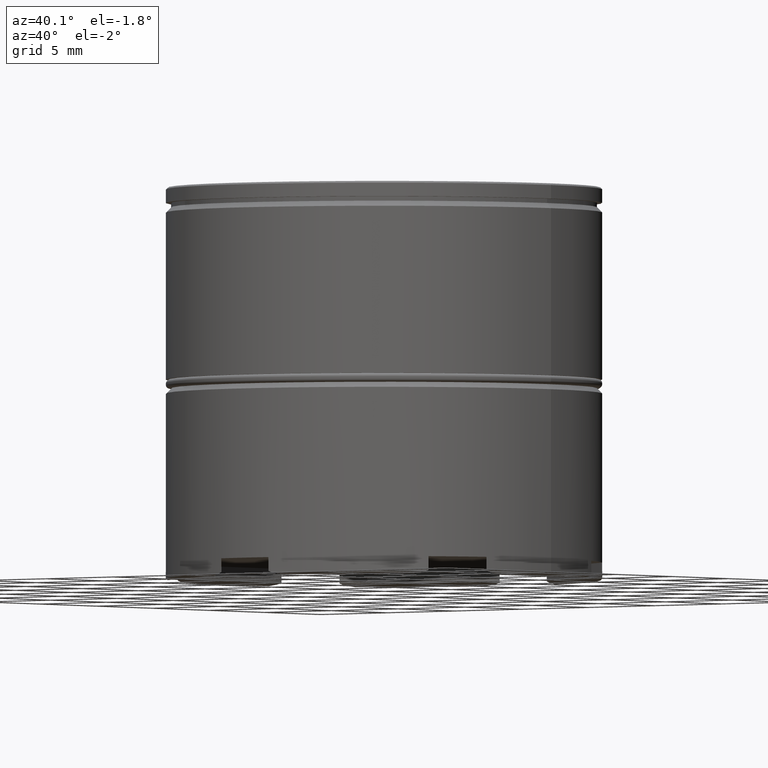
[diagram: clean part render]
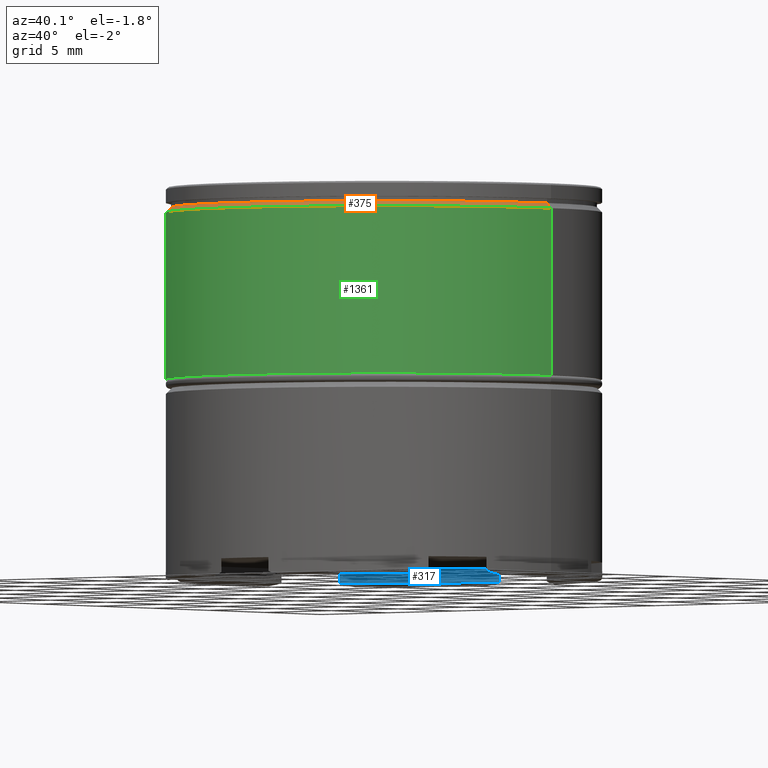
[diagram: same view with three faces highlighted in distinct colors, each labeled with its STEP entity id]
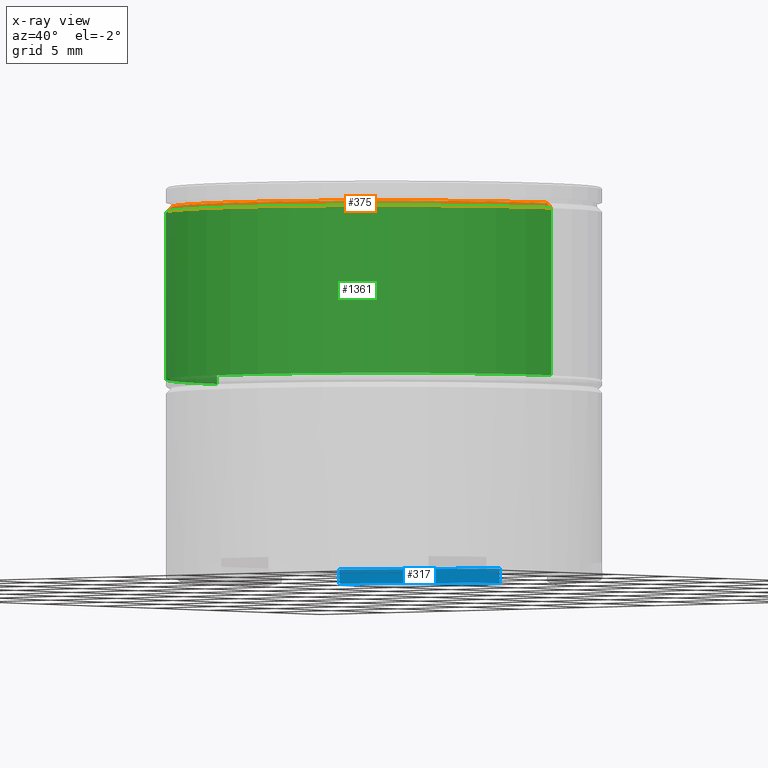
[diagram: x-ray of the same camera — body ghosted, the three highlighted faces saturated]
A machine part, auxiliary view with three faces highlighted in distinct colors.
The next image is the same camera in x-ray (body ghosted, the three faces saturated) — at least one of them is partly hidden behind the body in this view.
Their STEP definitions:

[orange] entity #375 — the highlighted conical surface has half-angle 45 deg.
#238 = ORIENTED_EDGE ( 'NONE', *, *, #752, .T. ) ;
#272 = VERTEX_POINT ( 'NONE', #841 ) ;
#277 = EDGE_CURVE ( 'NONE', #1419, #377, #1583, .T. ) ;
#293 = CARTESIAN_POINT ( 'NONE',  ( 0.000000000000000000, 0.000000000000000000, -1.125000000000000222 ) ) ;
#343 = VECTOR ( 'NONE', #660, 1000.000000000000000 ) ;
#353 = EDGE_LOOP ( 'NONE', ( #722, #692, #238, #365 ) ) ;
#365 = ORIENTED_EDGE ( 'NONE', *, *, #917, .F. ) ;
#369 = DIRECTION ( 'NONE',  ( -0.000000000000000000, -0.000000000000000000, 1.000000000000000000 ) ) ;
#375 = ADVANCED_FACE ( 'NONE', ( #426 ), #1354, .T. ) ;
#377 = VERTEX_POINT ( 'NONE', #707 ) ;
#426 = FACE_OUTER_BOUND ( 'NONE', #353, .T. ) ;
#593 = DIRECTION ( 'NONE',  ( 0.000000000000000000, 0.000000000000000000, -1.000000000000000000 ) ) ;
#660 = DIRECTION ( 'NONE',  ( -0.7071067811865454633, 0.000000000000000000, -0.7071067811865495711 ) ) ;
#672 = VECTOR ( 'NONE', #1217, 1000.000000000000000 ) ;
#692 = ORIENTED_EDGE ( 'NONE', *, *, #697, .F. ) ;
#697 = EDGE_CURVE ( 'NONE', #272, #1419, #1483, .T. ) ;
#707 = CARTESIAN_POINT ( 'NONE',  ( 12.50000000000000000, 0.000000000000000000, -1.425000000000010481 ) ) ;
#722 = ORIENTED_EDGE ( 'NONE', *, *, #277, .F. ) ;
#752 = EDGE_CURVE ( 'NONE', #272, #1059, #1441, .T. ) ;
#802 = DIRECTION ( 'NONE',  ( 0.000000000000000000, 0.000000000000000000, -1.000000000000000000 ) ) ;
#841 = CARTESIAN_POINT ( 'NONE',  ( -12.20000000000000107, 1.494069094959771056E-15, -1.125000000000000222 ) ) ;
#849 = CARTESIAN_POINT ( 'NONE',  ( 0.000000000000000000, 0.000000000000000000, -1.425000000000010481 ) ) ;
#875 = CARTESIAN_POINT ( 'NONE',  ( -12.50000000000000000, 1.530808498934191521E-15, -1.425000000000010481 ) ) ;
#916 = CARTESIAN_POINT ( 'NONE',  ( -12.19999999999999218, 0.000000000000000000, -1.125000000000000222 ) ) ;
#917 = EDGE_CURVE ( 'NONE', #377, #1059, #1537, .T. ) ;
#929 = CARTESIAN_POINT ( 'NONE',  ( 12.19999999999999218, 1.494069094959770070E-15, -1.125000000000000222 ) ) ;
#958 = AXIS2_PLACEMENT_3D ( 'NONE', #1277, #369, #1250 ) ;
#969 = DIRECTION ( 'NONE',  ( 1.000000000000000000, 0.000000000000000000, 0.000000000000000000 ) ) ;
#1059 = VERTEX_POINT ( 'NONE', #875 ) ;
#1162 = CARTESIAN_POINT ( 'NONE',  ( 12.20000000000000107, 0.000000000000000000, -1.125000000000000222 ) ) ;
#1217 = DIRECTION ( 'NONE',  ( 0.7071067811865454633, 8.659560562354908206E-17, -0.7071067811865495711 ) ) ;
#1250 = DIRECTION ( 'NONE',  ( 1.000000000000000000, 0.000000000000000000, 0.000000000000000000 ) ) ;
#1277 = CARTESIAN_POINT ( 'NONE',  ( 0.000000000000000000, 0.000000000000000000, -1.125000000000000222 ) ) ;
#1335 = DIRECTION ( 'NONE',  ( -1.000000000000000000, 0.000000000000000000, 0.000000000000000000 ) ) ;
#1354 = CONICAL_SURFACE ( 'NONE', #1569, 12.19999999999999218, 0.7853981633974453924 ) ;
#1419 = VERTEX_POINT ( 'NONE', #1162 ) ;
#1441 = LINE ( 'NONE', #916, #343 ) ;
#1483 = CIRCLE ( 'NONE', #958, 12.20000000000000107 ) ;
#1509 = AXIS2_PLACEMENT_3D ( 'NONE', #849, #593, #969 ) ;
#1537 = CIRCLE ( 'NONE', #1509, 12.50000000000000000 ) ;
#1569 = AXIS2_PLACEMENT_3D ( 'NONE', #293, #802, #1335 ) ;
#1583 = LINE ( 'NONE', #929, #672 ) ;

[blue] entity #317 — the highlighted planar face has unit normal (-0.5, 0.866, 0).
#38 = DIRECTION ( 'NONE',  ( 0.8660254037844388186, 0.4999999999999996669, 0.000000000000000000 ) ) ;
#87 = CARTESIAN_POINT ( 'NONE',  ( -9.833298897924620974, 7.717268479460495101, -21.50000000000000000 ) ) ;
#174 = CARTESIAN_POINT ( 'NONE',  ( -11.60000000000000675, 6.697263122599663276, -21.50000000000000000 ) ) ;
#308 = VECTOR ( 'NONE', #1360, 1000.000000000000000 ) ;
#317 = ADVANCED_FACE ( 'NONE', ( #1089 ), #836, .F. ) ;
#371 = AXIS2_PLACEMENT_3D ( 'NONE', #174, #957, #1052 ) ;
#411 = CARTESIAN_POINT ( 'NONE',  ( -2.005266807797945638, 12.23678491392015566, -22.29999999999999361 ) ) ;
#485 = LINE ( 'NONE', #634, #308 ) ;
#576 = EDGE_CURVE ( 'NONE', #1147, #1409, #1148, .T. ) ;
#601 = CARTESIAN_POINT ( 'NONE',  ( -9.833298897924620974, 7.717268479460495101, 0.000000000000000000 ) ) ;
#634 = CARTESIAN_POINT ( 'NONE',  ( -1.766701102075377561, 12.37452088833849295, 0.000000000000000000 ) ) ;
#796 = EDGE_CURVE ( 'NONE', #1552, #1070, #1171, .T. ) ;
#836 = PLANE ( 'NONE',  #371 ) ;
#955 = EDGE_LOOP ( 'NONE', ( #1142, #1570, #1073, #1323 ) ) ;
#957 = DIRECTION ( 'NONE',  ( -0.4999999999999996669, 0.8660254037844388186, 0.000000000000000000 ) ) ;
#1052 = DIRECTION ( 'NONE',  ( -0.8660254037844388186, -0.4999999999999996669, 0.000000000000000000 ) ) ;
#1070 = VERTEX_POINT ( 'NONE', #1363 ) ;
#1073 = ORIENTED_EDGE ( 'NONE', *, *, #1258, .T. ) ;
#1089 = FACE_OUTER_BOUND ( 'NONE', #955, .T. ) ;
#1102 = DIRECTION ( 'NONE',  ( 0.000000000000000000, 0.000000000000000000, -1.000000000000000000 ) ) ;
#1117 = LINE ( 'NONE', #601, #1260 ) ;
#1142 = ORIENTED_EDGE ( 'NONE', *, *, #1345, .T. ) ;
#1147 = VERTEX_POINT ( 'NONE', #1212 ) ;
#1148 = LINE ( 'NONE', #411, #1458 ) ;
#1171 = LINE ( 'NONE', #1194, #1506 ) ;
#1194 = CARTESIAN_POINT ( 'NONE',  ( -11.60000000000000675, 6.697263122599663276, -21.50000000000000000 ) ) ;
#1212 = CARTESIAN_POINT ( 'NONE',  ( -9.833298897924620974, 7.717268479460495101, -22.29999999999999361 ) ) ;
#1258 = EDGE_CURVE ( 'NONE', #1409, #1070, #485, .T. ) ;
#1260 = VECTOR ( 'NONE', #1102, 1000.000000000000000 ) ;
#1323 = ORIENTED_EDGE ( 'NONE', *, *, #796, .F. ) ;
#1345 = EDGE_CURVE ( 'NONE', #1552, #1147, #1117, .T. ) ;
#1360 = DIRECTION ( 'NONE',  ( -0.000000000000000000, -0.000000000000000000, 1.000000000000000000 ) ) ;
#1363 = CARTESIAN_POINT ( 'NONE',  ( -1.766701102075377561, 12.37452088833849295, -21.50000000000000000 ) ) ;
#1409 = VERTEX_POINT ( 'NONE', #1543 ) ;
#1426 = DIRECTION ( 'NONE',  ( 0.8660254037844388186, 0.4999999999999997224, 0.000000000000000000 ) ) ;
#1458 = VECTOR ( 'NONE', #38, 1000.000000000000000 ) ;
#1506 = VECTOR ( 'NONE', #1426, 1000.000000000000000 ) ;
#1543 = CARTESIAN_POINT ( 'NONE',  ( -1.766701102075377561, 12.37452088833849295, -22.29999999999999361 ) ) ;
#1552 = VERTEX_POINT ( 'NONE', #87 ) ;
#1570 = ORIENTED_EDGE ( 'NONE', *, *, #576, .T. ) ;

[green] entity #1361 — the highlighted cylindrical surface (partial cylindrical patch) has radius 12.5 mm, axis along (-0, -0, 1).
#19 = VECTOR ( 'NONE', #273, 1000.000000000000000 ) ;
#63 = ORIENTED_EDGE ( 'NONE', *, *, #917, .T. ) ;
#84 = CARTESIAN_POINT ( 'NONE',  ( -12.50000000000000000, 1.530808498934191521E-15, -11.00000000000000000 ) ) ;
#151 = DIRECTION ( 'NONE',  ( 1.000000000000000000, 0.000000000000000000, 0.000000000000000000 ) ) ;
#214 = DIRECTION ( 'NONE',  ( -0.000000000000000000, -0.000000000000000000, 1.000000000000000000 ) ) ;
#273 = DIRECTION ( 'NONE',  ( -0.000000000000000000, -0.000000000000000000, 1.000000000000000000 ) ) ;
#309 = DIRECTION ( 'NONE',  ( 1.000000000000000000, 0.000000000000000000, 0.000000000000000000 ) ) ;
#332 = EDGE_CURVE ( 'NONE', #1055, #377, #721, .T. ) ;
#377 = VERTEX_POINT ( 'NONE', #707 ) ;
#476 = DIRECTION ( 'NONE',  ( -0.000000000000000000, -0.000000000000000000, 1.000000000000000000 ) ) ;
#491 = DIRECTION ( 'NONE',  ( -0.000000000000000000, -0.000000000000000000, 1.000000000000000000 ) ) ;
#575 = CARTESIAN_POINT ( 'NONE',  ( 12.50000000000000000, 0.000000000000000000, 0.000000000000000000 ) ) ;
#593 = DIRECTION ( 'NONE',  ( 0.000000000000000000, 0.000000000000000000, -1.000000000000000000 ) ) ;
#707 = CARTESIAN_POINT ( 'NONE',  ( 12.50000000000000000, 0.000000000000000000, -1.425000000000010481 ) ) ;
#721 = LINE ( 'NONE', #575, #1007 ) ;
#791 = CARTESIAN_POINT ( 'NONE',  ( -12.50000000000000000, 1.530808498934191521E-15, 0.000000000000000000 ) ) ;
#849 = CARTESIAN_POINT ( 'NONE',  ( 0.000000000000000000, 0.000000000000000000, -1.425000000000010481 ) ) ;
#875 = CARTESIAN_POINT ( 'NONE',  ( -12.50000000000000000, 1.530808498934191521E-15, -1.425000000000010481 ) ) ;
#903 = ORIENTED_EDGE ( 'NONE', *, *, #1386, .F. ) ;
#917 = EDGE_CURVE ( 'NONE', #377, #1059, #1537, .T. ) ;
#969 = DIRECTION ( 'NONE',  ( 1.000000000000000000, 0.000000000000000000, 0.000000000000000000 ) ) ;
#979 = CYLINDRICAL_SURFACE ( 'NONE', #1075, 12.50000000000000000 ) ;
#999 = CARTESIAN_POINT ( 'NONE',  ( 12.50000000000000000, 0.000000000000000000, -11.00000000000000000 ) ) ;
#1007 = VECTOR ( 'NONE', #476, 1000.000000000000000 ) ;
#1025 = AXIS2_PLACEMENT_3D ( 'NONE', #1353, #214, #309 ) ;
#1055 = VERTEX_POINT ( 'NONE', #999 ) ;
#1059 = VERTEX_POINT ( 'NONE', #875 ) ;
#1075 = AXIS2_PLACEMENT_3D ( 'NONE', #1485, #491, #151 ) ;
#1100 = CIRCLE ( 'NONE', #1025, 12.50000000000000000 ) ;
#1101 = ORIENTED_EDGE ( 'NONE', *, *, #332, .T. ) ;
#1185 = VERTEX_POINT ( 'NONE', #84 ) ;
#1211 = EDGE_CURVE ( 'NONE', #1185, #1055, #1100, .T. ) ;
#1227 = ORIENTED_EDGE ( 'NONE', *, *, #1211, .T. ) ;
#1233 = EDGE_LOOP ( 'NONE', ( #903, #1227, #1101, #63 ) ) ;
#1353 = CARTESIAN_POINT ( 'NONE',  ( 0.000000000000000000, 0.000000000000000000, -11.00000000000000000 ) ) ;
#1361 = ADVANCED_FACE ( 'NONE', ( #1608 ), #979, .T. ) ;
#1386 = EDGE_CURVE ( 'NONE', #1185, #1059, #1410, .T. ) ;
#1410 = LINE ( 'NONE', #791, #19 ) ;
#1485 = CARTESIAN_POINT ( 'NONE',  ( 0.000000000000000000, 0.000000000000000000, 0.000000000000000000 ) ) ;
#1509 = AXIS2_PLACEMENT_3D ( 'NONE', #849, #593, #969 ) ;
#1537 = CIRCLE ( 'NONE', #1509, 12.50000000000000000 ) ;
#1608 = FACE_OUTER_BOUND ( 'NONE', #1233, .T. ) ;